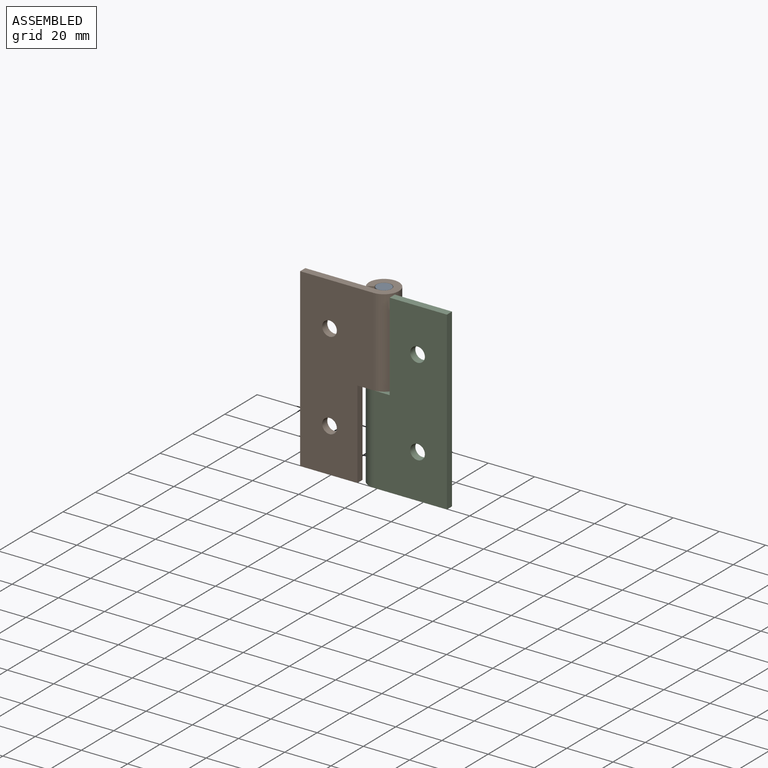
[diagram: assembled view]
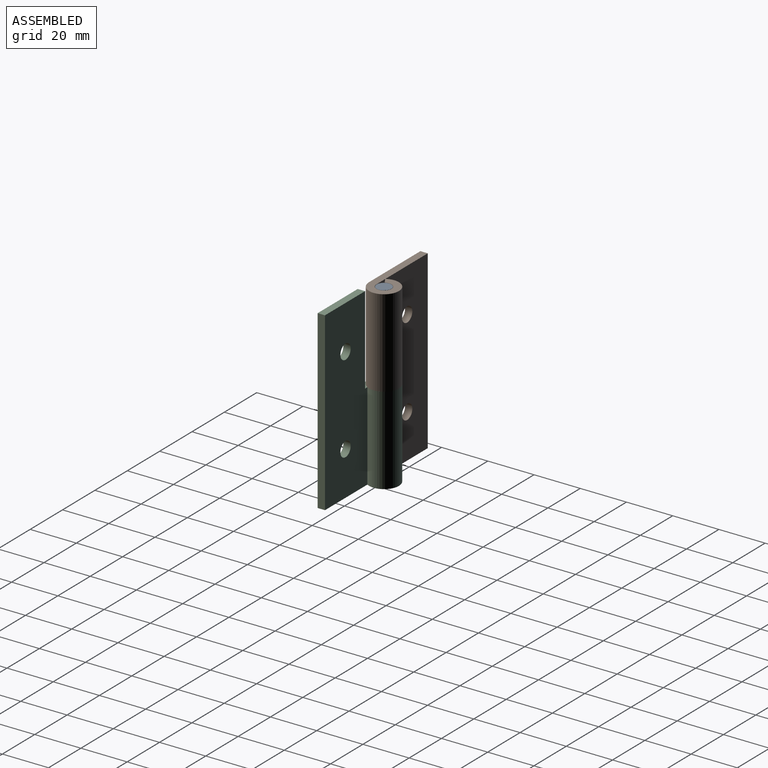
[diagram: assembled view, second angle]
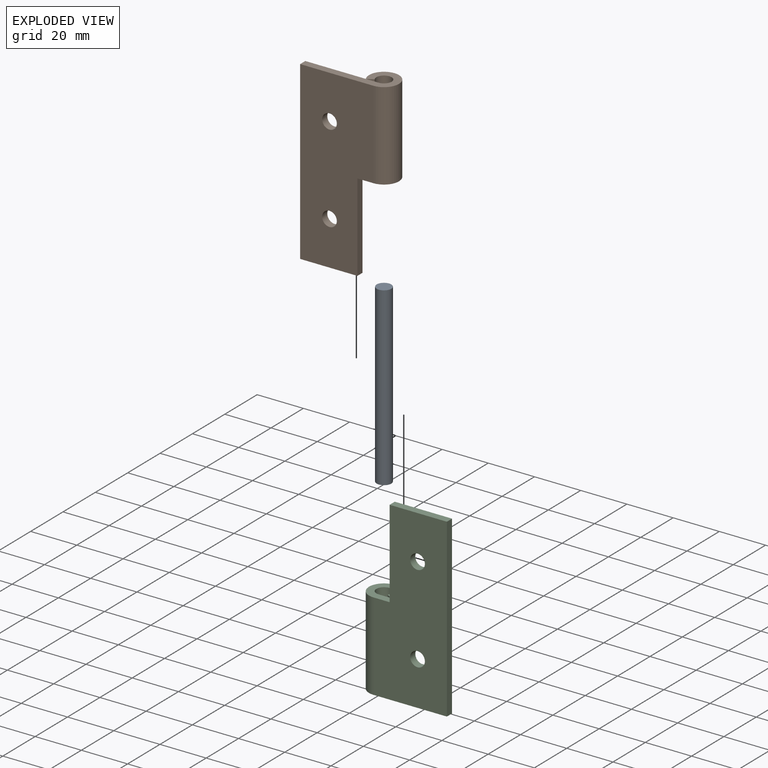
[diagram: exploded view]
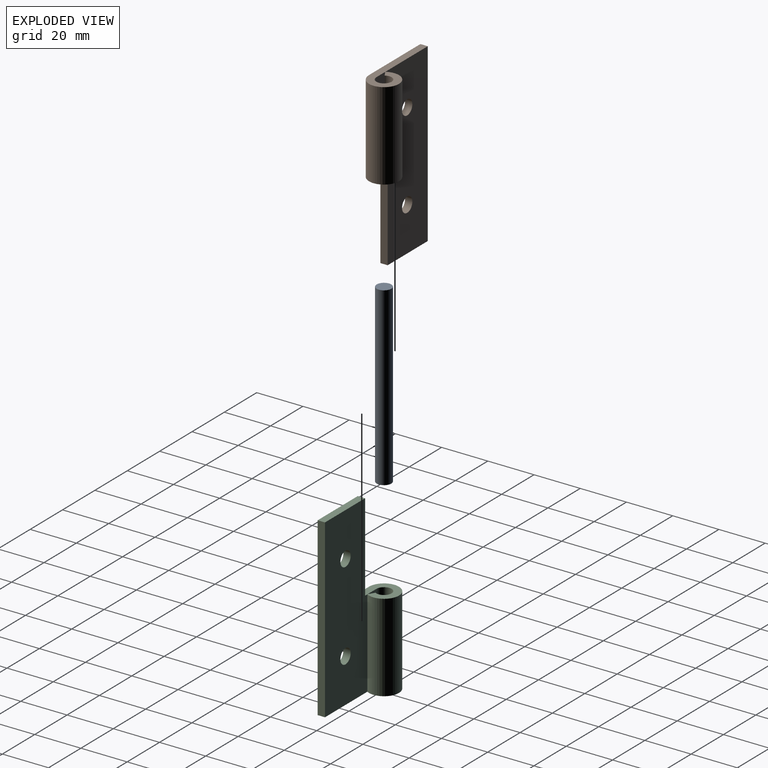
[diagram: exploded view, second angle]
ASSEMBLY  parts=3 mates=2
PART A: 3 faces, bbox 6.4x6.4x76.2 mm
  f0: cylinder r=3.17mm len=76.2mm, axis (0,0,-1), area 1520.1mm2, adj f1,f2
  f1: plane 6.35x6.35mm, normal (0,0,1), area 31.7mm2, adj f0
  f2: plane 6.35x6.35mm, normal (0,0,-1), area 31.7mm2, adj f0
PART B: 13 faces, bbox 38.2x13x76.2 mm
  f0: plane 76.2x31.75mm, normal (0,-1,0), area 2090.2mm2, adj f2,f3,f7,f8,f9,f10,f11,f12
  f1: plane 76.2x26.18mm, normal (0,1,0), area 1877.9mm2, adj f2,f3,f7,f8,f9,f10,f11,f12
  f2: plane 24.77x3.18mm, normal (0,0,-1), area 78.7mm2, adj f0,f1,f3,f12
  f3: plane 76.2x3.18mm, normal (-1,0,0), area 241.9mm2, adj f0,f1,f2,f8
  f4: plane 38.1x5.46mm, normal (0,1,0), area 207.8mm2, adj f5,f6,f8,f11
  f5: cylinder r=3.3mm len=38.1mm, axis (0,0,1), area 661.3mm2, adj f4,f6,f8,f11
  f6: plane 38.1x2.63mm, normal (0.52,-0.86,0), area 117.1mm2, adj f4,f5,f8,f11
  f7: cylinder r=6.48mm len=38.1mm, axis (0,0,1), area 1294.9mm2, adj f0,f1,f8,f11
  f8: plane 38.23x12.95mm, normal (0,0,1), area 182.4mm2, adj f0,f1,f3,f4,f5,f6,f7
  f9: cylinder r=3.17mm len=6.35mm, axis (0,-1,0), area 63.3mm2, adj f0,f1
  f10: cylinder r=3.17mm len=6.35mm, axis (0,-1,0), area 63.3mm2, adj f0,f1
  f11: plane 13.45x12.95mm, normal (0,0,-1), area 103.8mm2, adj f0,f1,f4,f5,f6,f7,f12
  f12: plane 38.1x3.18mm, normal (1,0,0), area 121mm2, adj f0,f1,f2,f11
PART C: same geometry as B
PLACE A t=(77.3,-19.22,-0.05)mm fixed
PLACE B t=(77.3,-19.22,-0.05)mm
PLACE C rot(axis=(0,-1,0),180deg) t=(-77.11,-19.22,-76.25)mm
MATE revolute A.f0 <-> B.f5  axis (0,0,1) through (0.09,1.21,-0.05)mm
MATE revolute A.f0 <-> C.f5  axis (0,0,-1) through (0.09,1.21,-76.25)mm
